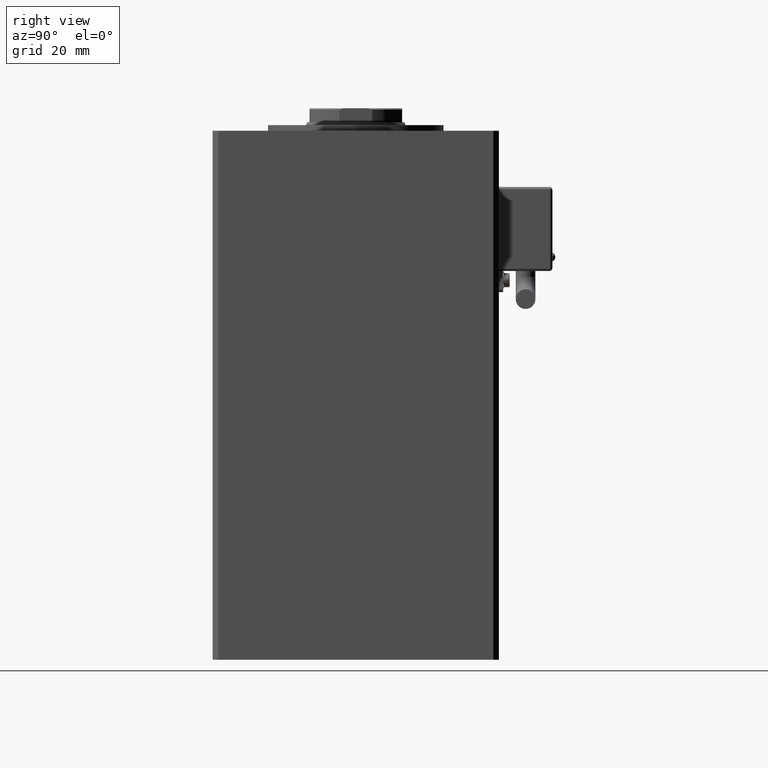
[diagram: clean part render]
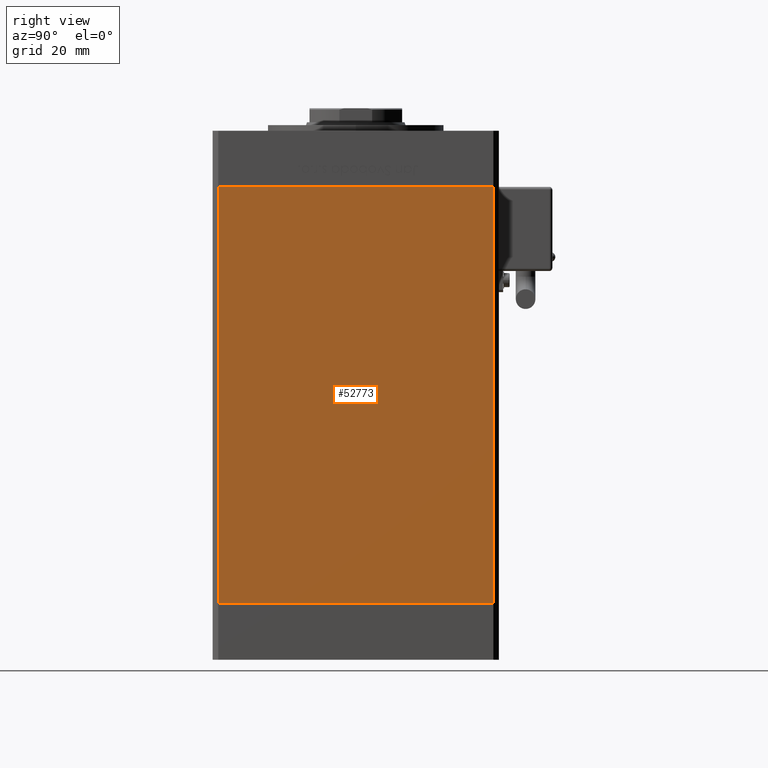
[diagram: same view with one face highlighted and labeled with its STEP entity id]
A machine part, right view. The second image highlights one B-rep face of the part: STEP entity #52773.
In plain terms, the highlighted planar face has unit normal (1, -0, 0).
Its self-contained STEP definition (entity closure, byte-faithful):
#648 = EDGE_CURVE ( 'NONE', #53664, #15628, #20302, .T. ) ;
#2251 = CARTESIAN_POINT ( 'NONE',  ( 59.99999999999998579, -49.00000000000000000, 148.5000000000000000 ) ) ;
#2296 = VECTOR ( 'NONE', #39041, 1000.000000000000000 ) ;
#5942 = ORIENTED_EDGE ( 'NONE', *, *, #18844, .F. ) ;
#7139 = CARTESIAN_POINT ( 'NONE',  ( 60.00000000000001421, 49.00000000000000000, 148.5000000000000000 ) ) ;
#7522 = CARTESIAN_POINT ( 'NONE',  ( 59.99999999999998579, -49.00000000000000000, 148.5000000000000000 ) ) ;
#9169 = CARTESIAN_POINT ( 'NONE',  ( 60.00000000000001421, 49.00000000000000000, 0.000000000000000000 ) ) ;
#13532 = LINE ( 'NONE', #26564, #2296 ) ;
#14270 = VERTEX_POINT ( 'NONE', #9169 ) ;
#15474 = DIRECTION ( 'NONE',  ( 1.000000000000000000, -2.832201593431521726E-16, 0.000000000000000000 ) ) ;
#15563 = DIRECTION ( 'NONE',  ( -0.000000000000000000, -0.000000000000000000, -1.000000000000000000 ) ) ;
#15628 = VERTEX_POINT ( 'NONE', #37070 ) ;
#16029 = PLANE ( 'NONE',  #35386 ) ;
#16430 = ORIENTED_EDGE ( 'NONE', *, *, #39404, .T. ) ;
#18844 = EDGE_CURVE ( 'NONE', #14270, #15628, #47205, .T. ) ;
#19700 = EDGE_CURVE ( 'NONE', #30680, #14270, #45512, .T. ) ;
#20302 = LINE ( 'NONE', #7522, #31348 ) ;
#20922 = ORIENTED_EDGE ( 'NONE', *, *, #19700, .F. ) ;
#21975 = DIRECTION ( 'NONE',  ( -2.832201593431521726E-16, -1.000000000000000000, 0.000000000000000000 ) ) ;
#22990 = VECTOR ( 'NONE', #21975, 1000.000000000000000 ) ;
#24187 = DIRECTION ( 'NONE',  ( -0.000000000000000000, -0.000000000000000000, -1.000000000000000000 ) ) ;
#26402 = ORIENTED_EDGE ( 'NONE', *, *, #648, .T. ) ;
#26564 = CARTESIAN_POINT ( 'NONE',  ( 60.00000000000001421, 49.00000000000000000, 148.5000000000000000 ) ) ;
#30680 = VERTEX_POINT ( 'NONE', #34556 ) ;
#31348 = VECTOR ( 'NONE', #24187, 1000.000000000000000 ) ;
#34556 = CARTESIAN_POINT ( 'NONE',  ( 60.00000000000001421, 49.00000000000000000, 148.5000000000000000 ) ) ;
#35374 = VECTOR ( 'NONE', #15563, 1000.000000000000000 ) ;
#35386 = AXIS2_PLACEMENT_3D ( 'NONE', #7139, #15474, #41805 ) ;
#36812 = FACE_OUTER_BOUND ( 'NONE', #46049, .T. ) ;
#37070 = CARTESIAN_POINT ( 'NONE',  ( 59.99999999999998579, -49.00000000000000000, 0.000000000000000000 ) ) ;
#39041 = DIRECTION ( 'NONE',  ( -2.832201593431521726E-16, -1.000000000000000000, 0.000000000000000000 ) ) ;
#39404 = EDGE_CURVE ( 'NONE', #30680, #53664, #13532, .T. ) ;
#41805 = DIRECTION ( 'NONE',  ( 2.832201593431521726E-16, 1.000000000000000000, 0.000000000000000000 ) ) ;
#41895 = CARTESIAN_POINT ( 'NONE',  ( 60.00000000000001421, 49.00000000000000000, 148.5000000000000000 ) ) ;
#43044 = CARTESIAN_POINT ( 'NONE',  ( 60.00000000000001421, 49.00000000000000000, 0.000000000000000000 ) ) ;
#45512 = LINE ( 'NONE', #41895, #35374 ) ;
#46049 = EDGE_LOOP ( 'NONE', ( #5942, #20922, #16430, #26402 ) ) ;
#47205 = LINE ( 'NONE', #43044, #22990 ) ;
#52773 = ADVANCED_FACE ( 'NONE', ( #36812 ), #16029, .T. ) ;
#53664 = VERTEX_POINT ( 'NONE', #2251 ) ;